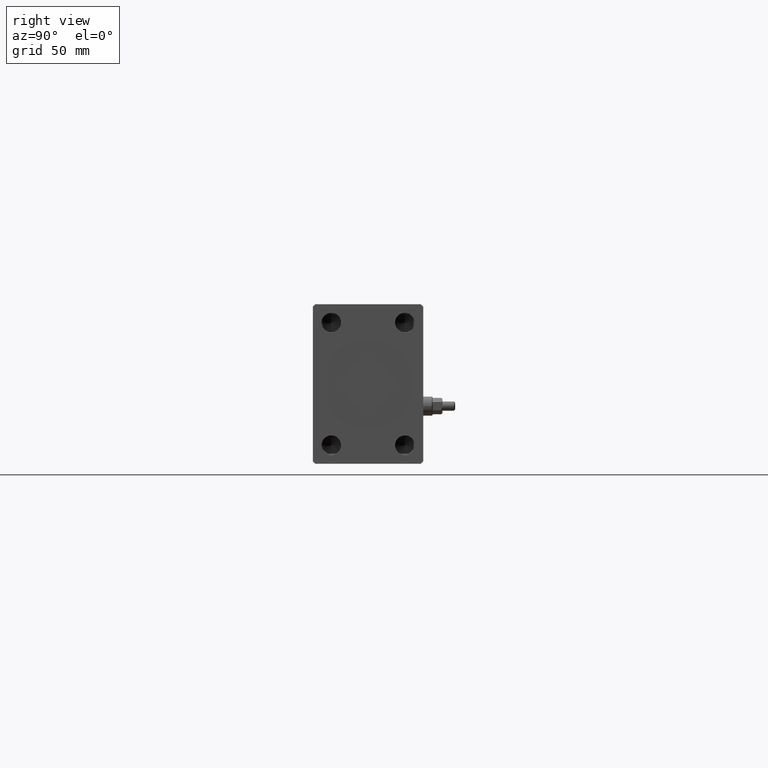
[diagram: clean part render]
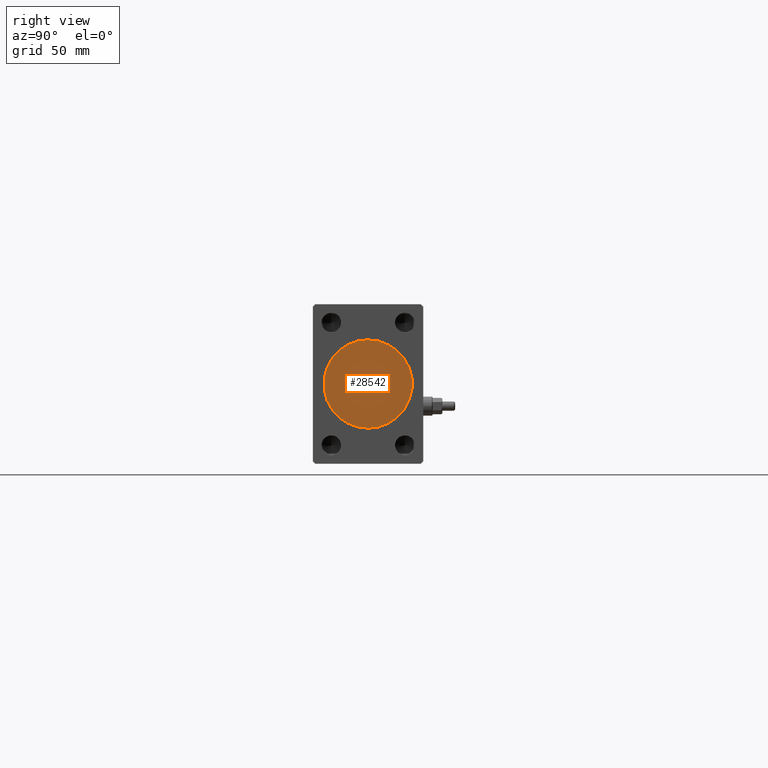
[diagram: same view with one face highlighted and labeled with its STEP entity id]
A machine part, right view. The second image highlights one B-rep face of the part: STEP entity #28542.
In plain terms, the highlighted planar face has unit normal (1, 0, 0).
Its self-contained STEP definition (entity closure, byte-faithful):
#310 = DIRECTION ( 'NONE',  ( 0.000000000000000000, 0.000000000000000000, -1.000000000000000000 ) ) ;
#2757 = CARTESIAN_POINT ( 'NONE',  ( 262.8000000000000114, 0.000000000000000000, 0.000000000000000000 ) ) ;
#2842 = AXIS2_PLACEMENT_3D ( 'NONE', #2757, #16760, #27339 ) ;
#3891 = AXIS2_PLACEMENT_3D ( 'NONE', #31998, #22332, #18658 ) ;
#6843 = CIRCLE ( 'NONE', #3891, 18.00000000000000000 ) ;
#7815 = EDGE_CURVE ( 'NONE', #36962, #20206, #6843, .T. ) ;
#11554 = CARTESIAN_POINT ( 'NONE',  ( 262.8000000000000114, 0.000000000000000000, 0.000000000000000000 ) ) ;
#16281 = ORIENTED_EDGE ( 'NONE', *, *, #7815, .T. ) ;
#16760 = DIRECTION ( 'NONE',  ( 1.000000000000000000, 0.000000000000000000, 0.000000000000000000 ) ) ;
#18658 = DIRECTION ( 'NONE',  ( 0.000000000000000000, 0.000000000000000000, -1.000000000000000000 ) ) ;
#19686 = ORIENTED_EDGE ( 'NONE', *, *, #42007, .T. ) ;
#20206 = VERTEX_POINT ( 'NONE', #21660 ) ;
#21660 = CARTESIAN_POINT ( 'NONE',  ( 262.8000000000000114, 0.000000000000000000, -18.00000000000000000 ) ) ;
#22332 = DIRECTION ( 'NONE',  ( 1.000000000000000000, 0.000000000000000000, 0.000000000000000000 ) ) ;
#25740 = EDGE_LOOP ( 'NONE', ( #19686, #16281 ) ) ;
#27339 = DIRECTION ( 'NONE',  ( 0.000000000000000000, 0.000000000000000000, -1.000000000000000000 ) ) ;
#28542 = ADVANCED_FACE ( 'NONE', ( #31000 ), #34234, .T. ) ;
#28563 = DIRECTION ( 'NONE',  ( 1.000000000000000000, 0.000000000000000000, 0.000000000000000000 ) ) ;
#31000 = FACE_OUTER_BOUND ( 'NONE', #25740, .T. ) ;
#31998 = CARTESIAN_POINT ( 'NONE',  ( 262.8000000000000114, 0.000000000000000000, 0.000000000000000000 ) ) ;
#32678 = AXIS2_PLACEMENT_3D ( 'NONE', #11554, #28563, #310 ) ;
#34234 = PLANE ( 'NONE',  #2842 ) ;
#36962 = VERTEX_POINT ( 'NONE', #41202 ) ;
#41202 = CARTESIAN_POINT ( 'NONE',  ( 262.8000000000000114, 2.204364238465235428E-15, 18.00000000000000000 ) ) ;
#42007 = EDGE_CURVE ( 'NONE', #20206, #36962, #42230, .T. ) ;
#42230 = CIRCLE ( 'NONE', #32678, 18.00000000000000000 ) ;